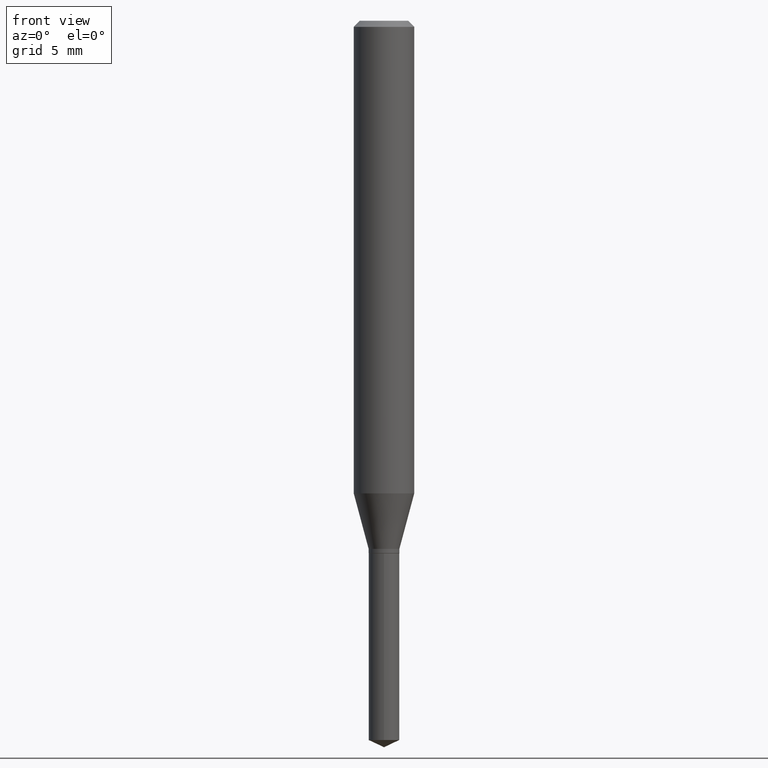
[diagram: clean part render]
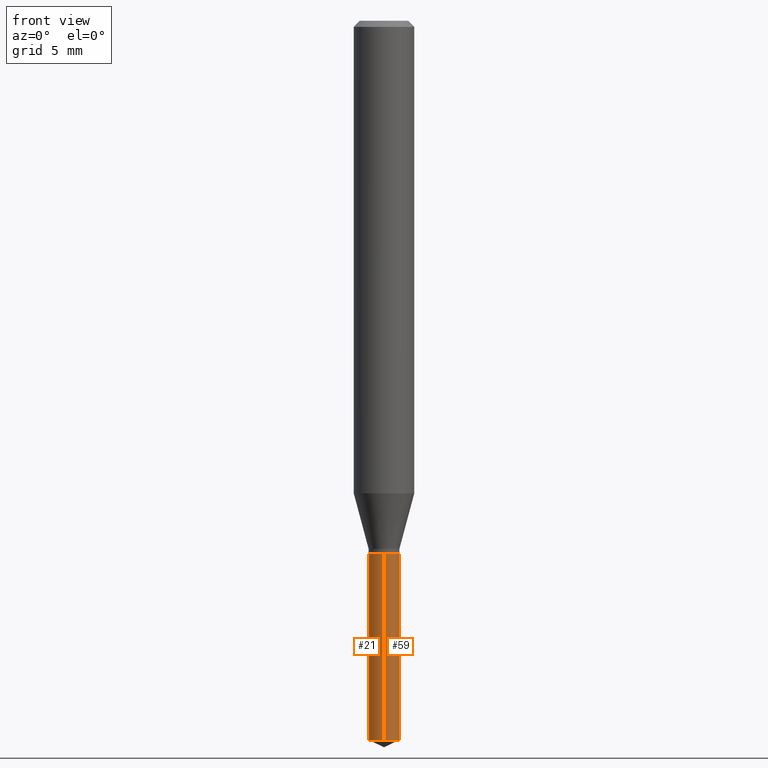
[diagram: same view with one multi-face feature highlighted, each face labeled with its STEP entity id]
A machine part, front view. The highlighted faces form ONE feature: a constant-radius fillet chain: 2 tangent blend faces with common blend radius 0.8065 mm. The faces share edges in the B-rep.
Their STEP definitions:
[1] entity #21 (Cylinder):
#6 = CIRCLE ( 'NONE', #284, 0.03175000000000000044 ) ;
#8 = DIRECTION ( 'NONE',  ( -2.445399690415121810E-29, 3.491580316559632610E-15, 1.000000000000000000 ) ) ;
#21 = ADVANCED_FACE ( 'NONE', ( #297 ), #323, .T. ) ;
#32 = EDGE_CURVE ( 'NONE', #286, #319, #111, .T. ) ;
#34 = CIRCLE ( 'NONE', #313, 0.03175000000000000044 ) ;
#60 = VECTOR ( 'NONE', #477, 39.37007874015748143 ) ;
#82 = DIRECTION ( 'NONE',  ( -6.982962677686265922E-15, -1.000000000000000000, 4.302122824668131015E-15 ) ) ;
#100 = CARTESIAN_POINT ( 'NONE',  ( 2.690015686803650369E-29, -3.840629472727460101E-15, -1.100000000000000089 ) ) ;
#106 = EDGE_LOOP ( 'NONE', ( #279, #351, #179, #355 ) ) ;
#111 = LINE ( 'NONE', #367, #60 ) ;
#179 = ORIENTED_EDGE ( 'NONE', *, *, #304, .T. ) ;
#186 = CARTESIAN_POINT ( 'NONE',  ( 3.631970764827928095E-29, -5.185567816509882109E-15, -1.485194731853578975 ) ) ;
#241 = DIRECTION ( 'NONE',  ( -6.982962677686265922E-15, -1.000000000000000000, 4.302122824668131015E-15 ) ) ;
#244 = AXIS2_PLACEMENT_3D ( 'NONE', #476, #258, #82 ) ;
#258 = DIRECTION ( 'NONE',  ( -2.445399690415121530E-29, 3.491580316559632610E-15, 1.000000000000000000 ) ) ;
#279 = ORIENTED_EDGE ( 'NONE', *, *, #32, .F. ) ;
#284 = AXIS2_PLACEMENT_3D ( 'NONE', #100, #459, #241 ) ;
#286 = VERTEX_POINT ( 'NONE', #484 ) ;
#297 = FACE_OUTER_BOUND ( 'NONE', #106, .T. ) ;
#304 = EDGE_CURVE ( 'NONE', #386, #485, #454, .T. ) ;
#308 = VECTOR ( 'NONE', #8, 39.37007874015748143 ) ;
#313 = AXIS2_PLACEMENT_3D ( 'NONE', #186, #427, #436 ) ;
#318 = CARTESIAN_POINT ( 'NONE',  ( -2.217090650165026775E-16, -0.03175000000000519768, -1.485194731853578975 ) ) ;
#319 = VERTEX_POINT ( 'NONE', #379 ) ;
#323 = CYLINDRICAL_SURFACE ( 'NONE', #244, 0.03175000000000000044 ) ;
#351 = ORIENTED_EDGE ( 'NONE', *, *, #369, .T. ) ;
#355 = ORIENTED_EDGE ( 'NONE', *, *, #445, .F. ) ;
#361 = CARTESIAN_POINT ( 'NONE',  ( -2.217090650165120452E-16, -0.03175000000000384459, -1.099999999999999867 ) ) ;
#367 = CARTESIAN_POINT ( 'NONE',  ( 2.255973186038586827E-16, 0.03174999999999615630, -1.100000000000000089 ) ) ;
#369 = EDGE_CURVE ( 'NONE', #286, #386, #34, .T. ) ;
#379 = CARTESIAN_POINT ( 'NONE',  ( 2.255973186038682477E-16, 0.03174999999999616324, -1.100000000000000089 ) ) ;
#386 = VERTEX_POINT ( 'NONE', #318 ) ;
#422 = CARTESIAN_POINT ( 'NONE',  ( -2.217090650165120452E-16, -0.03175000000000384459, -1.099999999999999867 ) ) ;
#427 = DIRECTION ( 'NONE',  ( -2.445399690415121530E-29, 3.491580316559632610E-15, 1.000000000000000000 ) ) ;
#436 = DIRECTION ( 'NONE',  ( -6.982962677686265922E-15, -1.000000000000000000, 0.000000000000000000 ) ) ;
#445 = EDGE_CURVE ( 'NONE', #319, #485, #6, .T. ) ;
#454 = LINE ( 'NONE', #422, #308 ) ;
#459 = DIRECTION ( 'NONE',  ( -2.445399690415121530E-29, 3.491580316559632610E-15, 1.000000000000000000 ) ) ;
#476 = CARTESIAN_POINT ( 'NONE',  ( 2.690015686803650369E-29, -3.840629472727460101E-15, -1.100000000000000089 ) ) ;
#477 = DIRECTION ( 'NONE',  ( -2.445399690415121810E-29, 3.491580316559632610E-15, 1.000000000000000000 ) ) ;
#484 = CARTESIAN_POINT ( 'NONE',  ( 2.255973186038681984E-16, 0.03174999999999482403, -1.485194731853578975 ) ) ;
#485 = VERTEX_POINT ( 'NONE', #361 ) ;
[2] entity #59 (Cylinder):
#8 = DIRECTION ( 'NONE',  ( -2.445399690415121810E-29, 3.491580316559632610E-15, 1.000000000000000000 ) ) ;
#24 = AXIS2_PLACEMENT_3D ( 'NONE', #275, #178, #364 ) ;
#32 = EDGE_CURVE ( 'NONE', #286, #319, #111, .T. ) ;
#59 = ADVANCED_FACE ( 'NONE', ( #143 ), #482, .T. ) ;
#60 = VECTOR ( 'NONE', #477, 39.37007874015748143 ) ;
#62 = CIRCLE ( 'NONE', #398, 0.03175000000000000044 ) ;
#72 = DIRECTION ( 'NONE',  ( -6.982962677686265922E-15, -1.000000000000000000, 4.302122824668131015E-15 ) ) ;
#111 = LINE ( 'NONE', #367, #60 ) ;
#129 = ORIENTED_EDGE ( 'NONE', *, *, #304, .F. ) ;
#143 = FACE_OUTER_BOUND ( 'NONE', #472, .T. ) ;
#177 = ORIENTED_EDGE ( 'NONE', *, *, #363, .F. ) ;
#178 = DIRECTION ( 'NONE',  ( -2.445399690415121530E-29, 3.491580316559632610E-15, 1.000000000000000000 ) ) ;
#180 = DIRECTION ( 'NONE',  ( -6.982962677686265922E-15, -1.000000000000000000, 0.000000000000000000 ) ) ;
#202 = ORIENTED_EDGE ( 'NONE', *, *, #372, .T. ) ;
#247 = ORIENTED_EDGE ( 'NONE', *, *, #32, .T. ) ;
#253 = DIRECTION ( 'NONE',  ( -2.445399690415121530E-29, 3.491580316559632610E-15, 1.000000000000000000 ) ) ;
#272 = CIRCLE ( 'NONE', #24, 0.03175000000000000044 ) ;
#275 = CARTESIAN_POINT ( 'NONE',  ( 2.690015686803650369E-29, -3.840629472727460101E-15, -1.100000000000000089 ) ) ;
#285 = CARTESIAN_POINT ( 'NONE',  ( 3.631970764827928095E-29, -5.185567816509882109E-15, -1.485194731853578975 ) ) ;
#286 = VERTEX_POINT ( 'NONE', #484 ) ;
#291 = CARTESIAN_POINT ( 'NONE',  ( 2.690015686803650369E-29, -3.840629472727460101E-15, -1.100000000000000089 ) ) ;
#296 = AXIS2_PLACEMENT_3D ( 'NONE', #291, #253, #72 ) ;
#304 = EDGE_CURVE ( 'NONE', #386, #485, #454, .T. ) ;
#308 = VECTOR ( 'NONE', #8, 39.37007874015748143 ) ;
#318 = CARTESIAN_POINT ( 'NONE',  ( -2.217090650165026775E-16, -0.03175000000000519768, -1.485194731853578975 ) ) ;
#319 = VERTEX_POINT ( 'NONE', #379 ) ;
#358 = DIRECTION ( 'NONE',  ( -2.445399690415121530E-29, 3.491580316559632610E-15, 1.000000000000000000 ) ) ;
#361 = CARTESIAN_POINT ( 'NONE',  ( -2.217090650165120452E-16, -0.03175000000000384459, -1.099999999999999867 ) ) ;
#363 = EDGE_CURVE ( 'NONE', #485, #319, #272, .T. ) ;
#364 = DIRECTION ( 'NONE',  ( -6.982962677686265922E-15, -1.000000000000000000, 4.302122824668131015E-15 ) ) ;
#367 = CARTESIAN_POINT ( 'NONE',  ( 2.255973186038586827E-16, 0.03174999999999615630, -1.100000000000000089 ) ) ;
#372 = EDGE_CURVE ( 'NONE', #386, #286, #62, .T. ) ;
#379 = CARTESIAN_POINT ( 'NONE',  ( 2.255973186038682477E-16, 0.03174999999999616324, -1.100000000000000089 ) ) ;
#386 = VERTEX_POINT ( 'NONE', #318 ) ;
#398 = AXIS2_PLACEMENT_3D ( 'NONE', #285, #358, #180 ) ;
#422 = CARTESIAN_POINT ( 'NONE',  ( -2.217090650165120452E-16, -0.03175000000000384459, -1.099999999999999867 ) ) ;
#454 = LINE ( 'NONE', #422, #308 ) ;
#472 = EDGE_LOOP ( 'NONE', ( #202, #247, #177, #129 ) ) ;
#477 = DIRECTION ( 'NONE',  ( -2.445399690415121810E-29, 3.491580316559632610E-15, 1.000000000000000000 ) ) ;
#482 = CYLINDRICAL_SURFACE ( 'NONE', #296, 0.03175000000000000044 ) ;
#484 = CARTESIAN_POINT ( 'NONE',  ( 2.255973186038681984E-16, 0.03174999999999482403, -1.485194731853578975 ) ) ;
#485 = VERTEX_POINT ( 'NONE', #361 ) ;